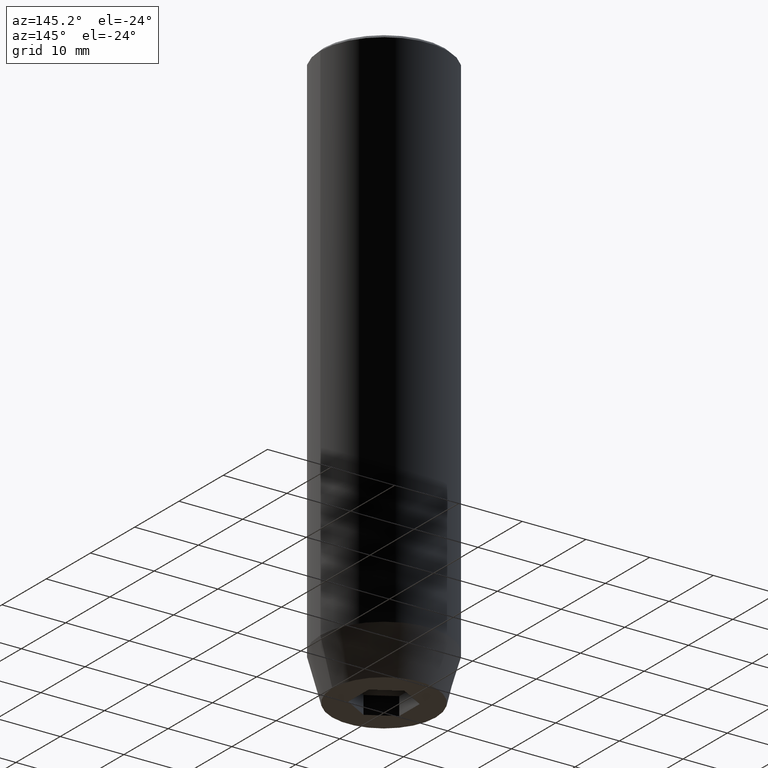
[diagram: clean part render]
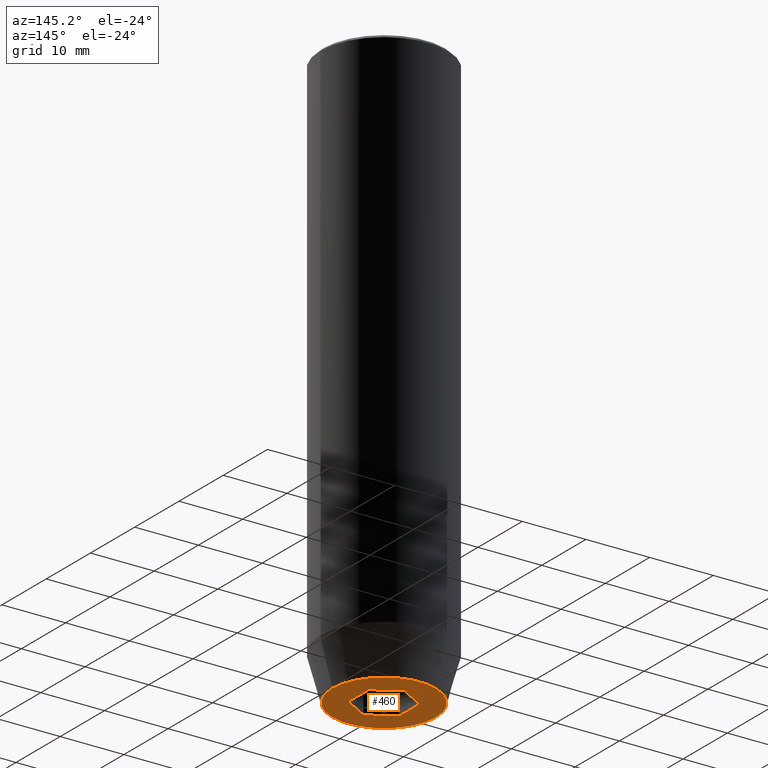
[diagram: same view with one face highlighted and labeled with its STEP entity id]
A machine part, auxiliary view. The second image highlights one B-rep face of the part: STEP entity #460.
In plain terms, the highlighted planar face has unit normal (0, 0, -1).
Its self-contained STEP definition (entity closure, byte-faithful):
#12 = DIRECTION ( 'NONE',  ( 0.8660254037844387076, 0.5000000000000001110, 0.000000000000000000 ) ) ;
#26 = AXIS2_PLACEMENT_3D ( 'NONE', #533, #528, #139 ) ;
#52 = CARTESIAN_POINT ( 'NONE',  ( 4.000000000000000000, 0.000000000000000000, -90.00000000000000000 ) ) ;
#59 = CARTESIAN_POINT ( 'NONE',  ( 4.000000000000000000, -2.309401076758502480, -90.00000000000000000 ) ) ;
#69 = ORIENTED_EDGE ( 'NONE', *, *, #88, .F. ) ;
#77 = VECTOR ( 'NONE', #429, 1000.000000000000114 ) ;
#85 = DIRECTION ( 'NONE',  ( -0.000000000000000000, -0.000000000000000000, 1.000000000000000000 ) ) ;
#87 = VECTOR ( 'NONE', #417, 1000.000000000000000 ) ;
#88 = EDGE_CURVE ( 'NONE', #446, #421, #477, .T. ) ;
#90 = CARTESIAN_POINT ( 'NONE',  ( 0.000000000000000000, 0.000000000000000000, -90.00000000000000000 ) ) ;
#92 = ORIENTED_EDGE ( 'NONE', *, *, #251, .F. ) ;
#94 = CIRCLE ( 'NONE', #117, 8.124355652982135467 ) ;
#101 = CARTESIAN_POINT ( 'NONE',  ( 0.000000000000000000, 0.000000000000000000, -90.00000000000000000 ) ) ;
#104 = LINE ( 'NONE', #52, #205 ) ;
#116 = FACE_BOUND ( 'NONE', #264, .T. ) ;
#117 = AXIS2_PLACEMENT_3D ( 'NONE', #90, #85, #255 ) ;
#122 = AXIS2_PLACEMENT_3D ( 'NONE', #101, #346, #268 ) ;
#137 = VERTEX_POINT ( 'NONE', #455 ) ;
#139 = DIRECTION ( 'NONE',  ( -1.000000000000000000, 0.000000000000000000, -0.000000000000000000 ) ) ;
#147 = ORIENTED_EDGE ( 'NONE', *, *, #244, .F. ) ;
#153 = ORIENTED_EDGE ( 'NONE', *, *, #198, .F. ) ;
#165 = CARTESIAN_POINT ( 'NONE',  ( -2.000000000000000888, -3.464101615137754386, -90.00000000000000000 ) ) ;
#189 = DIRECTION ( 'NONE',  ( 0.000000000000000000, 1.000000000000000000, 0.000000000000000000 ) ) ;
#191 = VERTEX_POINT ( 'NONE', #325 ) ;
#198 = EDGE_CURVE ( 'NONE', #226, #446, #461, .T. ) ;
#200 = CARTESIAN_POINT ( 'NONE',  ( 2.000000000000000888, -3.464101615137754386, -90.00000000000000000 ) ) ;
#202 = CARTESIAN_POINT ( 'NONE',  ( 8.124355652982135467, 0.000000000000000000, -90.00000000000000000 ) ) ;
#205 = VECTOR ( 'NONE', #555, 1000.000000000000000 ) ;
#226 = VERTEX_POINT ( 'NONE', #59 ) ;
#230 = VERTEX_POINT ( 'NONE', #554 ) ;
#236 = EDGE_CURVE ( 'NONE', #454, #191, #310, .T. ) ;
#244 = EDGE_CURVE ( 'NONE', #230, #518, #501, .T. ) ;
#251 = EDGE_CURVE ( 'NONE', #137, #454, #473, .T. ) ;
#255 = DIRECTION ( 'NONE',  ( 1.000000000000000000, 0.000000000000000000, 0.000000000000000000 ) ) ;
#264 = EDGE_LOOP ( 'NONE', ( #92, #486, #69, #153, #374, #513 ) ) ;
#268 = DIRECTION ( 'NONE',  ( 1.000000000000000000, 0.000000000000000000, 0.000000000000000000 ) ) ;
#274 = ORIENTED_EDGE ( 'NONE', *, *, #297, .F. ) ;
#297 = EDGE_CURVE ( 'NONE', #518, #230, #94, .T. ) ;
#298 = PLANE ( 'NONE',  #26 ) ;
#299 = EDGE_LOOP ( 'NONE', ( #274, #147 ) ) ;
#310 = LINE ( 'NONE', #450, #87 ) ;
#325 = CARTESIAN_POINT ( 'NONE',  ( 4.000000000000000000, 2.309401076758503368, -90.00000000000000000 ) ) ;
#329 = VECTOR ( 'NONE', #189, 1000.000000000000000 ) ;
#334 = VECTOR ( 'NONE', #558, 1000.000000000000114 ) ;
#346 = DIRECTION ( 'NONE',  ( -0.000000000000000000, -0.000000000000000000, 1.000000000000000000 ) ) ;
#374 = ORIENTED_EDGE ( 'NONE', *, *, #402, .F. ) ;
#381 = CARTESIAN_POINT ( 'NONE',  ( -2.000000000000000000, 3.464101615137754830, -90.00000000000000000 ) ) ;
#402 = EDGE_CURVE ( 'NONE', #191, #226, #104, .T. ) ;
#409 = EDGE_CURVE ( 'NONE', #421, #137, #495, .T. ) ;
#412 = CARTESIAN_POINT ( 'NONE',  ( -4.000000000000000000, -2.309401076758503368, -90.00000000000000000 ) ) ;
#417 = DIRECTION ( 'NONE',  ( 0.8660254037844385966, -0.5000000000000001110, 0.000000000000000000 ) ) ;
#421 = VERTEX_POINT ( 'NONE', #412 ) ;
#429 = DIRECTION ( 'NONE',  ( -0.8660254037844384856, 0.5000000000000002220, 0.000000000000000000 ) ) ;
#446 = VERTEX_POINT ( 'NONE', #559 ) ;
#450 = CARTESIAN_POINT ( 'NONE',  ( 2.000000000000000444, 3.464101615137754386, -90.00000000000000000 ) ) ;
#454 = VERTEX_POINT ( 'NONE', #512 ) ;
#455 = CARTESIAN_POINT ( 'NONE',  ( -4.000000000000000000, 2.309401076758503368, -90.00000000000000000 ) ) ;
#456 = CARTESIAN_POINT ( 'NONE',  ( -4.000000000000000000, 0.000000000000000000, -90.00000000000000000 ) ) ;
#460 = ADVANCED_FACE ( 'NONE', ( #116, #465 ), #298, .T. ) ;
#461 = LINE ( 'NONE', #200, #334 ) ;
#465 = FACE_OUTER_BOUND ( 'NONE', #299, .T. ) ;
#473 = LINE ( 'NONE', #381, #552 ) ;
#477 = LINE ( 'NONE', #165, #77 ) ;
#486 = ORIENTED_EDGE ( 'NONE', *, *, #409, .F. ) ;
#495 = LINE ( 'NONE', #456, #329 ) ;
#501 = CIRCLE ( 'NONE', #122, 8.124355652982135467 ) ;
#512 = CARTESIAN_POINT ( 'NONE',  ( 2.168404344971008868E-16, 4.618802153517005848, -90.00000000000000000 ) ) ;
#513 = ORIENTED_EDGE ( 'NONE', *, *, #236, .F. ) ;
#518 = VERTEX_POINT ( 'NONE', #202 ) ;
#528 = DIRECTION ( 'NONE',  ( 0.000000000000000000, 0.000000000000000000, -1.000000000000000000 ) ) ;
#533 = CARTESIAN_POINT ( 'NONE',  ( 0.000000000000000000, 8.124355652982135467, -90.00000000000000000 ) ) ;
#552 = VECTOR ( 'NONE', #12, 999.9999999999998863 ) ;
#554 = CARTESIAN_POINT ( 'NONE',  ( -8.124355652982135467, 1.109796706851640556E-15, -90.00000000000000000 ) ) ;
#555 = DIRECTION ( 'NONE',  ( 0.000000000000000000, -1.000000000000000000, 0.000000000000000000 ) ) ;
#558 = DIRECTION ( 'NONE',  ( -0.8660254037844384856, -0.5000000000000002220, 0.000000000000000000 ) ) ;
#559 = CARTESIAN_POINT ( 'NONE',  ( 4.336808689942017736E-16, -4.618802153517006737, -90.00000000000000000 ) ) ;